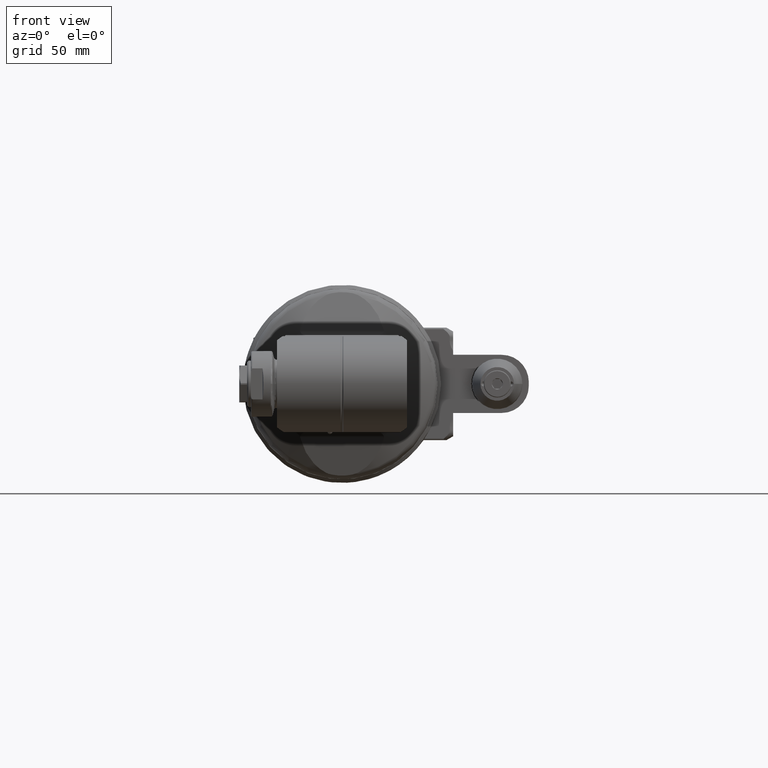
[diagram: clean part render]
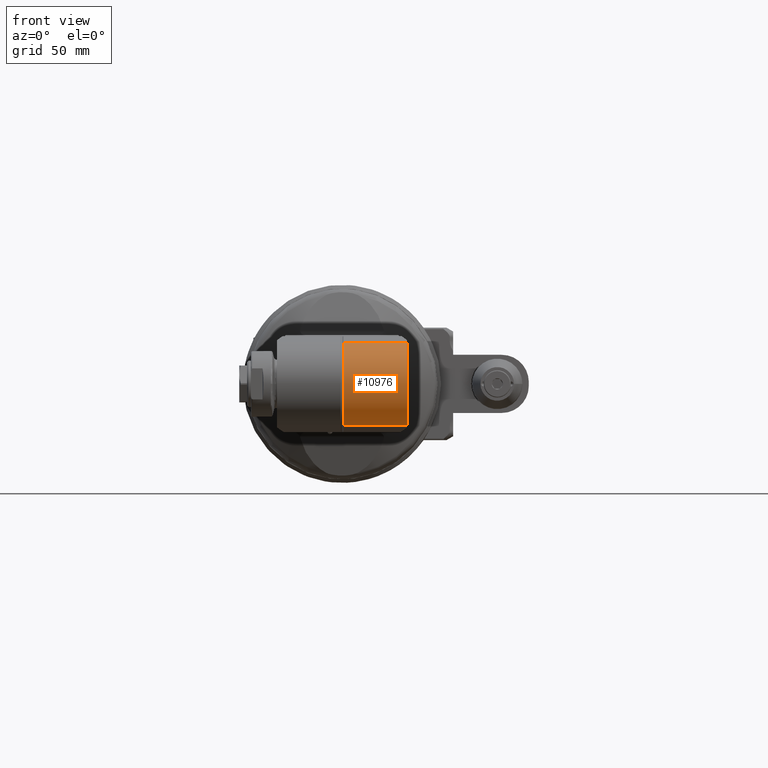
[diagram: same view with one face highlighted and labeled with its STEP entity id]
A machine part, front view. The second image highlights one B-rep face of the part: STEP entity #10976.
In plain terms, the highlighted cylindrical surface (partial cylindrical patch) has radius 22 mm, axis along (1, 0, 0).
Its self-contained STEP definition (entity closure, byte-faithful):
#523=CYLINDRICAL_SURFACE('',#11761,22.);
#883=CIRCLE('',#11762,22.);
#884=CIRCLE('',#11763,22.);
#1383=FACE_OUTER_BOUND('',#2009,.T.);
#2009=EDGE_LOOP('',(#7745,#7746,#7747,#7748));
#2702=LINE('',#16667,#3584);
#2703=LINE('',#16672,#3585);
#3584=VECTOR('',#13194,32.83431457505);
#3585=VECTOR('',#13199,32.83431457505);
#4529=VERTEX_POINT('',#16479);
#4569=VERTEX_POINT('',#16665);
#4570=VERTEX_POINT('',#16669);
#4571=VERTEX_POINT('',#16671);
#5843=EDGE_CURVE('',#4529,#4569,#2702,.T.);
#5844=EDGE_CURVE('',#4570,#4569,#883,.T.);
#5845=EDGE_CURVE('',#4570,#4571,#2703,.T.);
#5846=EDGE_CURVE('',#4529,#4571,#884,.T.);
#7745=ORIENTED_EDGE('',*,*,#5843,.T.);
#7746=ORIENTED_EDGE('',*,*,#5844,.F.);
#7747=ORIENTED_EDGE('',*,*,#5845,.T.);
#7748=ORIENTED_EDGE('',*,*,#5846,.F.);
#10976=ADVANCED_FACE('',(#1383),#523,.T.);
#11761=AXIS2_PLACEMENT_3D('',#16668,#13195,#13196);
#11762=AXIS2_PLACEMENT_3D('',#16670,#13197,#13198);
#11763=AXIS2_PLACEMENT_3D('',#16673,#13200,#13201);
#13194=DIRECTION('',(0.,1.,0.));
#13195=DIRECTION('center_axis',(0.,1.,0.));
#13196=DIRECTION('ref_axis',(1.,0.,-1.22464679914735E-16));
#13197=DIRECTION('center_axis',(0.,1.,0.));
#13198=DIRECTION('ref_axis',(1.,0.,0.));
#13199=DIRECTION('',(0.,-1.,0.));
#13200=DIRECTION('center_axis',(0.,-1.,0.));
#13201=DIRECTION('ref_axis',(1.,0.,0.));
#16479=CARTESIAN_POINT('',(185.6940189923,0.6656854249493,-21.25036817836));
#16665=CARTESIAN_POINT('',(185.6940189923,33.5,-21.25036817836));
#16667=CARTESIAN_POINT('',(185.6940189923,0.6656854249493,-21.25036817836));
#16668=CARTESIAN_POINT('Origin',(180.,-71.53832403312,0.));
#16669=CARTESIAN_POINT('',(185.6940189923,33.5,21.25036817836));
#16670=CARTESIAN_POINT('Origin',(180.,33.5,0.));
#16671=CARTESIAN_POINT('',(185.6940189923,0.6656854249493,21.25036817836));
#16672=CARTESIAN_POINT('',(185.6940189923,33.5,21.25036817836));
#16673=CARTESIAN_POINT('Origin',(180.,0.6656854249493,0.));